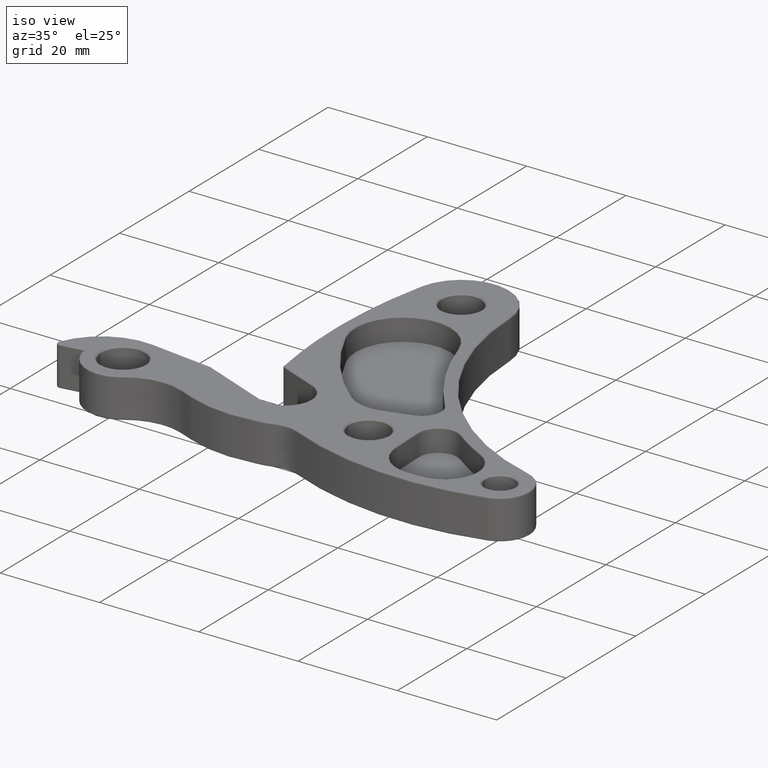
[diagram: clean part render]
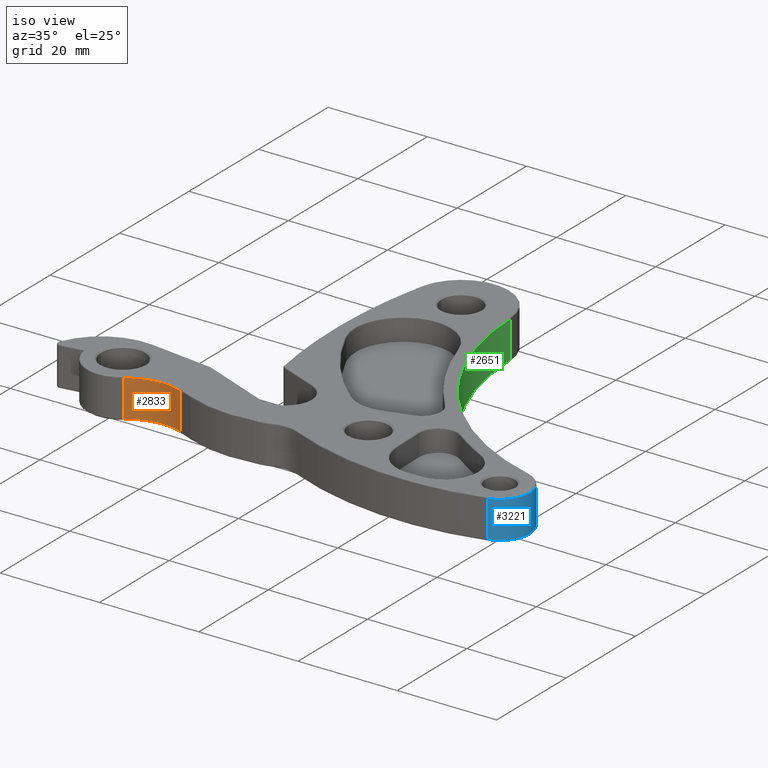
[diagram: same view with three faces highlighted in distinct colors, each labeled with its STEP entity id]
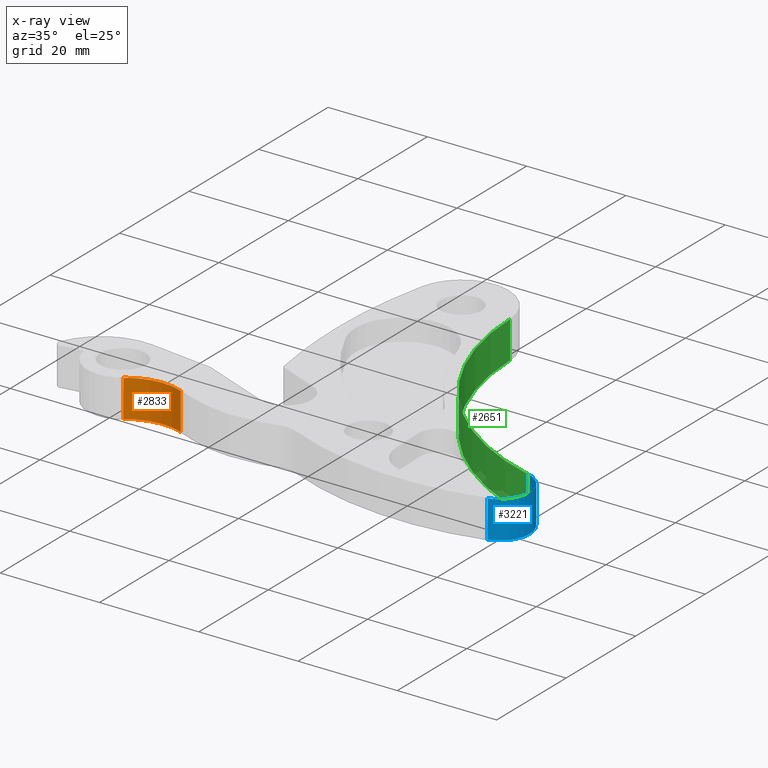
[diagram: x-ray of the same camera — body ghosted, the three highlighted faces saturated]
A machine part, iso view with three faces highlighted in distinct colors.
The next image is the same camera in x-ray (body ghosted, the three faces saturated) — at least one of them is partly hidden behind the body in this view.
Their STEP definitions:

[orange] entity #2833 — the highlighted cylindrical surface (partial cylindrical patch) has radius 11.1125 mm, axis along (-0, -0, -1).
#1 = ORIENTED_EDGE ( 'NONE', *, *, #2924, .T. ) ;
#89 = VERTEX_POINT ( 'NONE', #2579 ) ;
#140 = CARTESIAN_POINT ( 'NONE',  ( 3.333868002349681170, -7.191733697863536889, 0.009999999999999995004 ) ) ;
#186 = CARTESIAN_POINT ( 'NONE',  ( 3.333868002349681170, -7.191733697863536889, 0.3049999999999999933 ) ) ;
#212 = CIRCLE ( 'NONE', #534, 0.4374999999999955591 ) ;
#350 = DIRECTION ( 'NONE',  ( -0.0000000000000000000, -0.0000000000000000000, -1.000000000000000000 ) ) ;
#470 = AXIS2_PLACEMENT_3D ( 'NONE', #2217, #599, #2502 ) ;
#534 = AXIS2_PLACEMENT_3D ( 'NONE', #2740, #1113, #3012 ) ;
#563 = VERTEX_POINT ( 'NONE', #1872 ) ;
#599 = DIRECTION ( 'NONE',  ( 0.0000000000000000000, 0.0000000000000000000, 1.000000000000000000 ) ) ;
#646 = VERTEX_POINT ( 'NONE', #186 ) ;
#726 = ORIENTED_EDGE ( 'NONE', *, *, #2816, .F. ) ;
#868 = CARTESIAN_POINT ( 'NONE',  ( 3.752293095919838173, -7.142557110310901791, 0.3150000000000000022 ) ) ;
#1113 = DIRECTION ( 'NONE',  ( -0.0000000000000000000, -0.0000000000000000000, -1.000000000000000000 ) ) ;
#1125 = DIRECTION ( 'NONE',  ( -0.0000000000000000000, -0.0000000000000000000, -1.000000000000000000 ) ) ;
#1151 = CARTESIAN_POINT ( 'NONE',  ( 3.587838210523999649, -7.547971516405995729, 0.3150000000000000022 ) ) ;
#1224 = CIRCLE ( 'NONE', #470, 0.4374999999999955591 ) ;
#1383 = FACE_OUTER_BOUND ( 'NONE', #3043, .T. ) ;
#1404 = CARTESIAN_POINT ( 'NONE',  ( 3.333868002349681170, -7.191733697863536889, 0.3150000000000000022 ) ) ;
#1417 = DIRECTION ( 'NONE',  ( -1.000000000000000000, 0.0000000000000000000, 0.0000000000000000000 ) ) ;
#1488 = ORIENTED_EDGE ( 'NONE', *, *, #2754, .T. ) ;
#1602 = ORIENTED_EDGE ( 'NONE', *, *, #2575, .T. ) ;
#1654 = VERTEX_POINT ( 'NONE', #140 ) ;
#1872 = CARTESIAN_POINT ( 'NONE',  ( 3.752293095919838173, -7.142557110310901791, 0.009999999999999995004 ) ) ;
#1882 = LINE ( 'NONE', #1404, #2457 ) ;
#2016 = CYLINDRICAL_SURFACE ( 'NONE', #2710, 0.4374999999999955591 ) ;
#2100 = VECTOR ( 'NONE', #350, 39.37007874015748143 ) ;
#2197 = LINE ( 'NONE', #868, #2100 ) ;
#2217 = CARTESIAN_POINT ( 'NONE',  ( 3.587838210523999649, -7.547971516405995729, 0.3049999999999999933 ) ) ;
#2457 = VECTOR ( 'NONE', #1125, 39.37007874015748143 ) ;
#2502 = DIRECTION ( 'NONE',  ( 1.000000000000000000, 0.0000000000000000000, 0.0000000000000000000 ) ) ;
#2575 = EDGE_CURVE ( 'NONE', #646, #1654, #1882, .T. ) ;
#2579 = CARTESIAN_POINT ( 'NONE',  ( 3.752293095919838173, -7.142557110310901791, 0.3049999999999999933 ) ) ;
#2710 = AXIS2_PLACEMENT_3D ( 'NONE', #1151, #2776, #1417 ) ;
#2740 = CARTESIAN_POINT ( 'NONE',  ( 3.587838210523999649, -7.547971516405995729, 0.009999999999999995004 ) ) ;
#2754 = EDGE_CURVE ( 'NONE', #1654, #563, #212, .T. ) ;
#2776 = DIRECTION ( 'NONE',  ( -0.0000000000000000000, -0.0000000000000000000, -1.000000000000000000 ) ) ;
#2816 = EDGE_CURVE ( 'NONE', #89, #563, #2197, .T. ) ;
#2833 = ADVANCED_FACE ( 'NONE', ( #1383 ), #2016, .F. ) ;
#2924 = EDGE_CURVE ( 'NONE', #89, #646, #1224, .T. ) ;
#3012 = DIRECTION ( 'NONE',  ( 1.000000000000000000, 2.497689594207351615E-15, 0.0000000000000000000 ) ) ;
#3043 = EDGE_LOOP ( 'NONE', ( #1602, #1488, #726, #1 ) ) ;

[blue] entity #3221 — the highlighted cylindrical surface (edge-blend (fillet) strip) has radius 5.9944 mm, axis along (-0, -0, -1).
#43 = CARTESIAN_POINT ( 'NONE',  ( 6.274000000000000021, -7.125834463380999573, 0.3150000000000000022 ) ) ;
#52 = EDGE_CURVE ( 'NONE', #2360, #3362, #204, .T. ) ;
#116 = CARTESIAN_POINT ( 'NONE',  ( 6.338126654034785368, -6.898713851716961720, 0.009999999999999995004 ) ) ;
#119 = AXIS2_PLACEMENT_3D ( 'NONE', #911, #3380, #892 ) ;
#193 = ORIENTED_EDGE ( 'NONE', *, *, #1620, .T. ) ;
#204 = CIRCLE ( 'NONE', #1954, 0.2360000000000430365 ) ;
#205 = CARTESIAN_POINT ( 'NONE',  ( 6.338126654034785368, -6.898713851716961720, 0.3049999999999999933 ) ) ;
#208 = CYLINDRICAL_SURFACE ( 'NONE', #3121, 0.2360000000000430365 ) ;
#254 = ORIENTED_EDGE ( 'NONE', *, *, #3020, .T. ) ;
#395 = DIRECTION ( 'NONE',  ( 0.0000000000000000000, 0.0000000000000000000, 1.000000000000000000 ) ) ;
#537 = VERTEX_POINT ( 'NONE', #1579 ) ;
#582 = VERTEX_POINT ( 'NONE', #205 ) ;
#654 = ORIENTED_EDGE ( 'NONE', *, *, #1716, .T. ) ;
#778 = VERTEX_POINT ( 'NONE', #1351 ) ;
#892 = DIRECTION ( 'NONE',  ( 1.000000000000000000, 4.630250836718246039E-15, 0.0000000000000000000 ) ) ;
#910 = DIRECTION ( 'NONE',  ( -0.0000000000000000000, -0.0000000000000000000, -1.000000000000000000 ) ) ;
#911 = CARTESIAN_POINT ( 'NONE',  ( 6.274000000000000021, -7.125834463380999573, 0.3049999999999999933 ) ) ;
#926 = CARTESIAN_POINT ( 'NONE',  ( 6.274000000000000021, -7.125834463380999573, 0.3049999999999999933 ) ) ;
#1201 = DIRECTION ( 'NONE',  ( 1.000000000000000000, 0.0000000000000000000, 0.0000000000000000000 ) ) ;
#1269 = CARTESIAN_POINT ( 'NONE',  ( 6.274000000000000021, -7.125834463380999573, 0.009999999999999995004 ) ) ;
#1289 = CARTESIAN_POINT ( 'NONE',  ( 6.510000000000042419, -7.125834463380999573, 0.009999999999999995004 ) ) ;
#1351 = CARTESIAN_POINT ( 'NONE',  ( 6.336226959877573783, -7.353482888511539528, 0.3049999999999999933 ) ) ;
#1353 = VECTOR ( 'NONE', #3193, 39.37007874015748143 ) ;
#1425 = CIRCLE ( 'NONE', #2475, 0.2360000000000430365 ) ;
#1579 = CARTESIAN_POINT ( 'NONE',  ( 6.336226959877573783, -7.353482888511539528, 0.009999999999999995004 ) ) ;
#1620 = EDGE_CURVE ( 'NONE', #582, #2229, #3060, .T. ) ;
#1624 = ORIENTED_EDGE ( 'NONE', *, *, #3025, .T. ) ;
#1697 = CARTESIAN_POINT ( 'NONE',  ( 6.338126654034785368, -6.898713851716961720, 0.3150000000000000022 ) ) ;
#1716 = EDGE_CURVE ( 'NONE', #778, #537, #2070, .T. ) ;
#1764 = DIRECTION ( 'NONE',  ( 0.0000000000000000000, 0.0000000000000000000, 1.000000000000000000 ) ) ;
#1899 = ORIENTED_EDGE ( 'NONE', *, *, #52, .T. ) ;
#1954 = AXIS2_PLACEMENT_3D ( 'NONE', #1269, #1764, #3466 ) ;
#1995 = CARTESIAN_POINT ( 'NONE',  ( 6.274000000000000021, -7.125834463380999573, 0.009999999999999995004 ) ) ;
#2010 = VECTOR ( 'NONE', #910, 39.37007874015748143 ) ;
#2070 = LINE ( 'NONE', #2915, #1353 ) ;
#2079 = CARTESIAN_POINT ( 'NONE',  ( 6.510000000000042419, -7.125834463380999573, 0.3049999999999999933 ) ) ;
#2199 = DIRECTION ( 'NONE',  ( -1.000000000000000000, 0.0000000000000000000, 0.0000000000000000000 ) ) ;
#2229 = VERTEX_POINT ( 'NONE', #2079 ) ;
#2277 = DIRECTION ( 'NONE',  ( 1.000000000000000000, 0.0000000000000000000, 0.0000000000000000000 ) ) ;
#2286 = AXIS2_PLACEMENT_3D ( 'NONE', #1995, #395, #2277 ) ;
#2360 = VERTEX_POINT ( 'NONE', #1289 ) ;
#2370 = FACE_OUTER_BOUND ( 'NONE', #2711, .T. ) ;
#2475 = AXIS2_PLACEMENT_3D ( 'NONE', #926, #2815, #1201 ) ;
#2614 = ORIENTED_EDGE ( 'NONE', *, *, #3332, .F. ) ;
#2711 = EDGE_LOOP ( 'NONE', ( #654, #254, #1899, #2614, #193, #1624 ) ) ;
#2744 = LINE ( 'NONE', #1697, #2010 ) ;
#2790 = CIRCLE ( 'NONE', #2286, 0.2360000000000430365 ) ;
#2815 = DIRECTION ( 'NONE',  ( -0.0000000000000000000, -0.0000000000000000000, -1.000000000000000000 ) ) ;
#2915 = CARTESIAN_POINT ( 'NONE',  ( 6.336226959877573783, -7.353482888511539528, 0.3150000000000000022 ) ) ;
#3015 = DIRECTION ( 'NONE',  ( -0.0000000000000000000, -0.0000000000000000000, -1.000000000000000000 ) ) ;
#3020 = EDGE_CURVE ( 'NONE', #537, #2360, #2790, .T. ) ;
#3025 = EDGE_CURVE ( 'NONE', #2229, #778, #1425, .T. ) ;
#3060 = CIRCLE ( 'NONE', #119, 0.2360000000000430365 ) ;
#3121 = AXIS2_PLACEMENT_3D ( 'NONE', #43, #3015, #2199 ) ;
#3193 = DIRECTION ( 'NONE',  ( -0.0000000000000000000, -0.0000000000000000000, -1.000000000000000000 ) ) ;
#3221 = ADVANCED_FACE ( 'NONE', ( #2370 ), #208, .T. ) ;
#3332 = EDGE_CURVE ( 'NONE', #582, #3362, #2744, .T. ) ;
#3362 = VERTEX_POINT ( 'NONE', #116 ) ;
#3380 = DIRECTION ( 'NONE',  ( -0.0000000000000000000, -0.0000000000000000000, -1.000000000000000000 ) ) ;
#3466 = DIRECTION ( 'NONE',  ( 1.000000000000000000, 0.0000000000000000000, 0.0000000000000000000 ) ) ;

[green] entity #2651 — the highlighted cylindrical surface (partial cylindrical patch) has radius 51.0865 mm, axis along (-0, -0, -1).
#116 = CARTESIAN_POINT ( 'NONE',  ( 6.338126654034785368, -6.898713851716961720, 0.009999999999999995004 ) ) ;
#205 = CARTESIAN_POINT ( 'NONE',  ( 6.338126654034785368, -6.898713851716961720, 0.3049999999999999933 ) ) ;
#368 = CARTESIAN_POINT ( 'NONE',  ( 6.884638078334003097, -4.963106718681999041, 0.3049999999999999933 ) ) ;
#459 = VERTEX_POINT ( 'NONE', #2335 ) ;
#582 = VERTEX_POINT ( 'NONE', #205 ) ;
#633 = DIRECTION ( 'NONE',  ( 1.000000000000000000, 0.0000000000000000000, 0.0000000000000000000 ) ) ;
#681 = AXIS2_PLACEMENT_3D ( 'NONE', #2318, #2327, #2380 ) ;
#794 = DIRECTION ( 'NONE',  ( -1.000000000000000000, 0.0000000000000000000, 0.0000000000000000000 ) ) ;
#883 = CIRCLE ( 'NONE', #1541, 2.011280614520358334 ) ;
#910 = DIRECTION ( 'NONE',  ( -0.0000000000000000000, -0.0000000000000000000, -1.000000000000000000 ) ) ;
#1020 = EDGE_CURVE ( 'NONE', #3362, #3204, #1317, .T. ) ;
#1098 = ORIENTED_EDGE ( 'NONE', *, *, #1020, .T. ) ;
#1126 = CARTESIAN_POINT ( 'NONE',  ( 4.873961223622994332, -5.012384464887774449, 0.3150000000000000022 ) ) ;
#1317 = CIRCLE ( 'NONE', #681, 2.011280614520358334 ) ;
#1397 = DIRECTION ( 'NONE',  ( -0.0000000000000000000, -0.0000000000000000000, -1.000000000000000000 ) ) ;
#1516 = EDGE_LOOP ( 'NONE', ( #2284, #1098, #3076, #2381 ) ) ;
#1541 = AXIS2_PLACEMENT_3D ( 'NONE', #368, #2255, #633 ) ;
#1548 = LINE ( 'NONE', #1126, #2283 ) ;
#1697 = CARTESIAN_POINT ( 'NONE',  ( 6.338126654034785368, -6.898713851716961720, 0.3150000000000000022 ) ) ;
#1914 = CARTESIAN_POINT ( 'NONE',  ( 4.873961223622994332, -5.012384464887774449, 0.009999999999999995004 ) ) ;
#2010 = VECTOR ( 'NONE', #910, 39.37007874015748143 ) ;
#2255 = DIRECTION ( 'NONE',  ( 0.0000000000000000000, 0.0000000000000000000, 1.000000000000000000 ) ) ;
#2283 = VECTOR ( 'NONE', #1397, 39.37007874015748143 ) ;
#2284 = ORIENTED_EDGE ( 'NONE', *, *, #3332, .T. ) ;
#2318 = CARTESIAN_POINT ( 'NONE',  ( 6.884638078334003097, -4.963106718681999041, 0.009999999999999995004 ) ) ;
#2327 = DIRECTION ( 'NONE',  ( -0.0000000000000000000, -0.0000000000000000000, -1.000000000000000000 ) ) ;
#2335 = CARTESIAN_POINT ( 'NONE',  ( 4.873961223622994332, -5.012384464887774449, 0.3049999999999999933 ) ) ;
#2380 = DIRECTION ( 'NONE',  ( 1.000000000000000000, 0.0000000000000000000, 0.0000000000000000000 ) ) ;
#2381 = ORIENTED_EDGE ( 'NONE', *, *, #2974, .T. ) ;
#2626 = FACE_OUTER_BOUND ( 'NONE', #1516, .T. ) ;
#2651 = ADVANCED_FACE ( 'NONE', ( #2626 ), #3261, .F. ) ;
#2744 = LINE ( 'NONE', #1697, #2010 ) ;
#2942 = CARTESIAN_POINT ( 'NONE',  ( 6.884638078334003097, -4.963106718681999041, 0.3150000000000000022 ) ) ;
#2950 = AXIS2_PLACEMENT_3D ( 'NONE', #2942, #3225, #794 ) ;
#2974 = EDGE_CURVE ( 'NONE', #459, #582, #883, .T. ) ;
#3076 = ORIENTED_EDGE ( 'NONE', *, *, #3251, .F. ) ;
#3204 = VERTEX_POINT ( 'NONE', #1914 ) ;
#3225 = DIRECTION ( 'NONE',  ( -0.0000000000000000000, -0.0000000000000000000, -1.000000000000000000 ) ) ;
#3251 = EDGE_CURVE ( 'NONE', #459, #3204, #1548, .T. ) ;
#3261 = CYLINDRICAL_SURFACE ( 'NONE', #2950, 2.011280614520358334 ) ;
#3332 = EDGE_CURVE ( 'NONE', #582, #3362, #2744, .T. ) ;
#3362 = VERTEX_POINT ( 'NONE', #116 ) ;